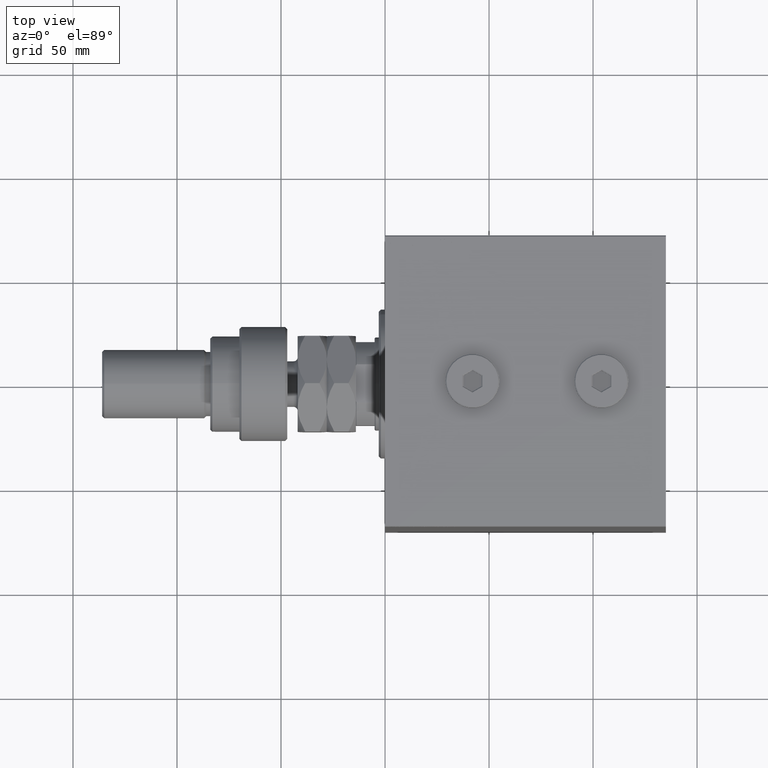
[diagram: clean part render]
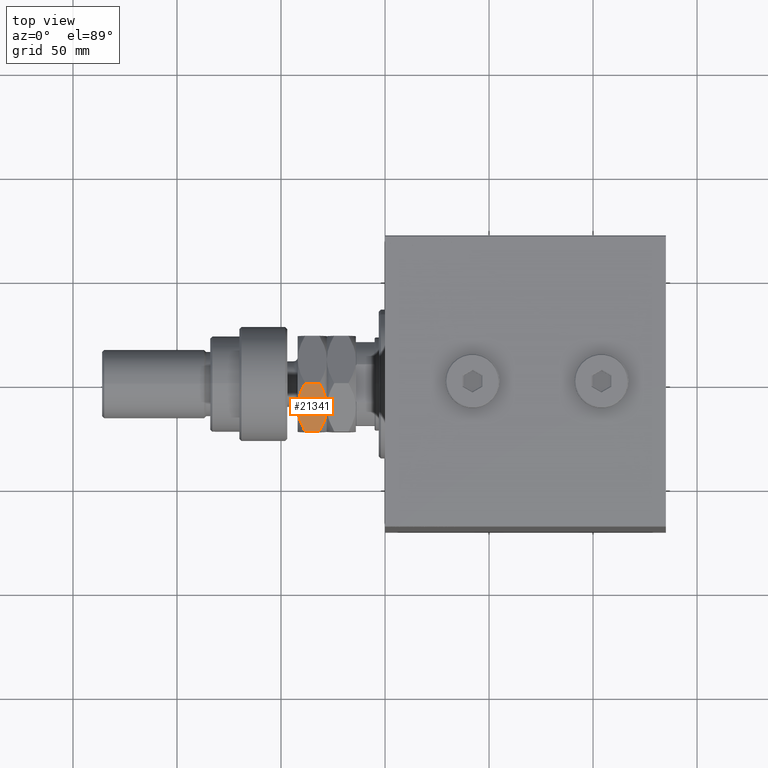
[diagram: same view with one face highlighted and labeled with its STEP entity id]
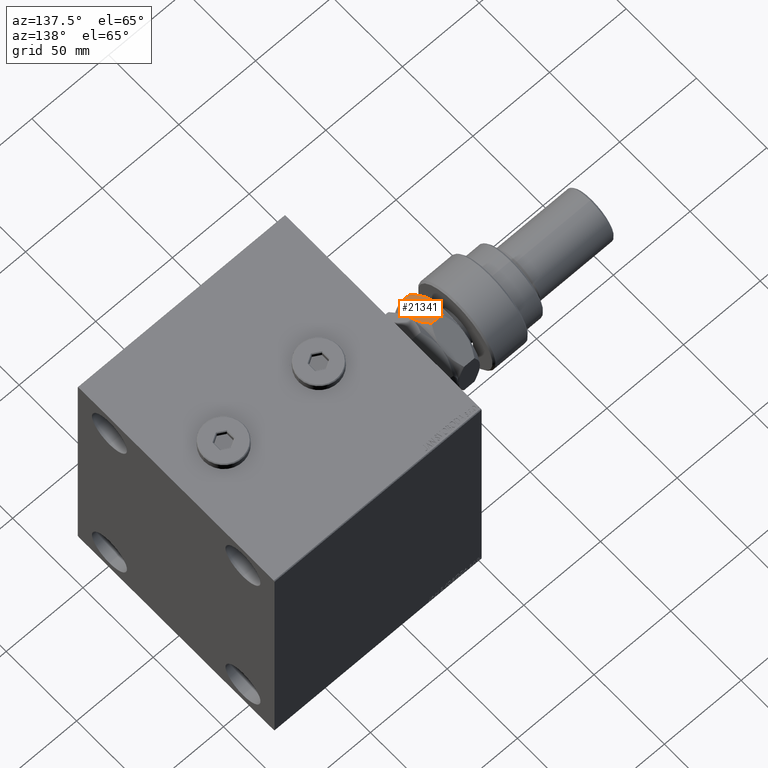
[diagram: same view with one face highlighted and labeled with its STEP entity id]
A machine part, top view. The second image highlights one B-rep face of the part: STEP entity #21341.
A second angle (auxiliary view) of the same face is appended — the face is thin or edge-on in the first view.
In plain terms, the highlighted planar face has unit normal (0, 0.5, -0.866).
Its self-contained STEP definition (entity closure, byte-faithful):
#455 = CARTESIAN_POINT ( 'NONE',  ( 22.99999999999999645, 0.000000000000000000, 14.00000000000000000 ) ) ;
#700 = CARTESIAN_POINT ( 'NONE',  ( 22.99999999999999289, 12.24963129209448276, 17.04339993308932222 ) ) ;
#923 = EDGE_CURVE ( 'NONE', #14373, #15539, #47349, .T. ) ;
#1366 = AXIS2_PLACEMENT_3D ( 'NONE', #5644, #17313, #13167 ) ;
#1873 = CARTESIAN_POINT ( 'NONE',  ( 23.00000000000000000, 5.732845801352522308, 27.32003707801577619 ) ) ;
#2317 = CARTESIAN_POINT ( 'NONE',  ( 23.00000000000000355, -9.037287856520078932, 15.69203433471579778 ) ) ;
#2483 = ORIENTED_EDGE ( 'NONE', *, *, #28625, .F. ) ;
#2920 = LINE ( 'NONE', #40074, #26643 ) ;
#3841 = CARTESIAN_POINT ( 'NONE',  ( 23.00000000000000000, -13.27905619136138959, 24.44188761727722792 ) ) ;
#4094 = CARTESIAN_POINT ( 'NONE',  ( 23.00000000000000355, 9.038140464506014382, 15.70670540628181477 ) ) ;
#4786 = CARTESIAN_POINT ( 'NONE',  ( 23.00000000000000000, -13.27905619136138959, 24.44188761727722792 ) ) ;
#4803 = CARTESIAN_POINT ( 'NONE',  ( 23.00000000000000000, 1.168850493887465758, 27.97756288437166461 ) ) ;
#5040 = CARTESIAN_POINT ( 'NONE',  ( 23.00000000000000000, 13.27905619136138959, 24.44188761727722436 ) ) ;
#5644 = CARTESIAN_POINT ( 'NONE',  ( 23.00000000000000000, -13.27905619136138959, 28.00000000000000000 ) ) ;
#6170 = CARTESIAN_POINT ( 'NONE',  ( 22.99999999999999645, 0.000000000000000000, 14.00000000000000000 ) ) ;
#6664 = VERTEX_POINT ( 'NONE', #19668 ) ;
#6794 = DIRECTION ( 'NONE',  ( -0.000000000000000000, -0.000000000000000000, -1.000000000000000000 ) ) ;
#7726 = CARTESIAN_POINT ( 'NONE',  ( 23.00000000000000711, -2.332866569036887938, 27.99999999999999645 ) ) ;
#8124 = EDGE_LOOP ( 'NONE', ( #2483, #21041, #37347, #27672, #45578, #23728 ) ) ;
#8206 = CARTESIAN_POINT ( 'NONE',  ( 22.99999999999999645, -7.384104261058114460, 26.84961951312581618 ) ) ;
#8922 = CARTESIAN_POINT ( 'NONE',  ( 23.00000000000000355, 11.19584287463890782, 25.43887941699775368 ) ) ;
#9351 = CARTESIAN_POINT ( 'NONE',  ( 23.00000000000000355, -7.945847288453419921, 15.31073039083534226 ) ) ;
#12562 = CARTESIAN_POINT ( 'NONE',  ( 23.00000000000000000, 2.901718448039539044, 27.82452852895291429 ) ) ;
#12761 = CARTESIAN_POINT ( 'NONE',  ( 23.00000000000001066, -0.5819124658698887620, 14.00000000000000711 ) ) ;
#12842 = VERTEX_POINT ( 'NONE', #46415 ) ;
#13087 = VERTEX_POINT ( 'NONE', #19664 ) ;
#13167 = DIRECTION ( 'NONE',  ( 0.000000000000000000, 0.000000000000000000, 1.000000000000000000 ) ) ;
#14373 = VERTEX_POINT ( 'NONE', #4786 ) ;
#15026 = CARTESIAN_POINT ( 'NONE',  ( 22.99999999999999645, 0.000000000000000000, 28.00000000000000000 ) ) ;
#15539 = VERTEX_POINT ( 'NONE', #36060 ) ;
#16195 = CARTESIAN_POINT ( 'NONE',  ( 23.00000000000000000, -2.327345773459499334, 14.11023447772089945 ) ) ;
#16231 = CARTESIAN_POINT ( 'NONE',  ( 22.99999999999999289, 2.327345773459494005, 27.88976552227909878 ) ) ;
#16703 = CARTESIAN_POINT ( 'NONE',  ( 23.00000000000000711, 12.24912306375522242, 24.95685418108031328 ) ) ;
#17145 = CARTESIAN_POINT ( 'NONE',  ( 23.00000000000000000, -13.27905619136138782, 17.55811238272277564 ) ) ;
#17313 = DIRECTION ( 'NONE',  ( -1.000000000000000000, 0.000000000000000000, 0.000000000000000000 ) ) ;
#18428 = CARTESIAN_POINT ( 'NONE',  ( 23.00000000000000000, -9.038140464506012606, 26.29329459371818345 ) ) ;
#19664 = CARTESIAN_POINT ( 'NONE',  ( 23.00000000000000000, 13.27905619136138959, 17.55811238272277564 ) ) ;
#19668 = CARTESIAN_POINT ( 'NONE',  ( 23.00000000000000000, 13.27905619136138959, 24.44188761727722436 ) ) ;
#20311 = CARTESIAN_POINT ( 'NONE',  ( 23.00000000000000355, -11.19584287463890959, 16.56112058300224632 ) ) ;
#21041 = ORIENTED_EDGE ( 'NONE', *, *, #39801, .F. ) ;
#21341 = ADVANCED_FACE ( 'NONE', ( #38928 ), #31885, .F. ) ;
#22804 = CARTESIAN_POINT ( 'NONE',  ( 23.00000000000000000, -12.24963129209447565, 24.95660006691067778 ) ) ;
#22814 = CARTESIAN_POINT ( 'NONE',  ( 23.00000000000000000, 13.27905619136138959, 17.55811238272277564 ) ) ;
#22908 = VECTOR ( 'NONE', #31720, 1000.000000000000000 ) ;
#23516 = CARTESIAN_POINT ( 'NONE',  ( 23.00000000000000355, 9.037287856520077156, 26.30796566528420399 ) ) ;
#23716 = CARTESIAN_POINT ( 'NONE',  ( 22.99999999999999645, 0.000000000000000000, 14.00000000000000000 ) ) ;
#23728 = ORIENTED_EDGE ( 'NONE', *, *, #30595, .F. ) ;
#26578 = VERTEX_POINT ( 'NONE', #6170 ) ;
#26643 = VECTOR ( 'NONE', #6794, 1000.000000000000000 ) ;
#27392 = CARTESIAN_POINT ( 'NONE',  ( 23.00000000000000355, 4.611258391204997586, 27.56938464817973511 ) ) ;
#27672 = ORIENTED_EDGE ( 'NONE', *, *, #923, .F. ) ;
#28069 = CARTESIAN_POINT ( 'NONE',  ( 23.00000000000000711, -12.24912306375521531, 17.04314581891969382 ) ) ;
#28625 = EDGE_CURVE ( 'NONE', #13087, #26578, #31791, .T. ) ;
#28661 = EDGE_CURVE ( 'NONE', #15539, #6664, #41598, .T. ) ;
#29592 = CARTESIAN_POINT ( 'NONE',  ( 22.99999999999999645, -11.20010744839417427, 25.43691701641144221 ) ) ;
#30569 = CARTESIAN_POINT ( 'NONE',  ( 23.00000000000000355, 2.332866569036886606, 14.00000000000000355 ) ) ;
#30595 = EDGE_CURVE ( 'NONE', #26578, #12842, #35650, .T. ) ;
#31720 = DIRECTION ( 'NONE',  ( -0.000000000000000000, -0.000000000000000000, -1.000000000000000000 ) ) ;
#31791 = B_SPLINE_CURVE_WITH_KNOTS ( 'NONE', 3,
 ( #22814, #700, #37383, #45157, #4094, #41736, #37144, #40767, #30569, #455 ),
 .UNSPECIFIED., .F., .F.,
 ( 4, 2, 2, 2, 4 ),
 ( 0.03391842154671734916, 0.03738166515001972723, 0.03911328695167091973, 0.04084490875332210530, 0.04777139595992687532 ),
 .UNSPECIFIED. ) ;
#31885 = PLANE ( 'NONE',  #1366 ) ;
#35115 = CARTESIAN_POINT ( 'NONE',  ( 23.00000000000000000, -13.27905619136138959, 28.00000000000000000 ) ) ;
#35399 = CARTESIAN_POINT ( 'NONE',  ( 22.99999999999999645, 7.945847288453418145, 26.68926960916466129 ) ) ;
#35650 = B_SPLINE_CURVE_WITH_KNOTS ( 'NONE', 3,
 ( #23716, #12761, #39005, #16195, #46769, #42644, #39247, #9351, #2317, #20311, #28069, #17145 ),
 .UNSPECIFIED., .F., .F.,
 ( 4, 2, 2, 2, 2, 4 ),
 ( 0.04777139595992687532, 0.04949914554651194121, 0.05122689513309700016, 0.05468239430626712499, 0.05813789347943724983, 0.06159339265260737467 ),
 .UNSPECIFIED. ) ;
#36060 = CARTESIAN_POINT ( 'NONE',  ( 22.99999999999999645, 0.000000000000000000, 28.00000000000000000 ) ) ;
#37144 = CARTESIAN_POINT ( 'NONE',  ( 23.00000000000000711, 7.384104261058126895, 15.15038048687418559 ) ) ;
#37347 = ORIENTED_EDGE ( 'NONE', *, *, #28661, .F. ) ;
#37383 = CARTESIAN_POINT ( 'NONE',  ( 23.00000000000000000, 11.20010744839417782, 16.56308298358856135 ) ) ;
#38928 = FACE_OUTER_BOUND ( 'NONE', #8124, .T. ) ;
#39005 = CARTESIAN_POINT ( 'NONE',  ( 23.00000000000000000, -1.168850493887471087, 14.02243711562833184 ) ) ;
#39045 = CARTESIAN_POINT ( 'NONE',  ( 22.99999999999999645, 0.000000000000000000, 28.00000000000000000 ) ) ;
#39247 = CARTESIAN_POINT ( 'NONE',  ( 23.00000000000000711, -5.732845801352522308, 14.67996292198422736 ) ) ;
#39801 = EDGE_CURVE ( 'NONE', #6664, #13087, #2920, .T. ) ;
#40074 = CARTESIAN_POINT ( 'NONE',  ( 23.00000000000000000, 13.27905619136138959, 28.00000000000000000 ) ) ;
#40513 = CARTESIAN_POINT ( 'NONE',  ( 23.00000000000000711, -4.604003285773378806, 27.64082713328069119 ) ) ;
#40767 = CARTESIAN_POINT ( 'NONE',  ( 23.00000000000000355, 4.604003285773385024, 14.35917286671931059 ) ) ;
#40997 = CARTESIAN_POINT ( 'NONE',  ( 22.99999999999999289, -9.585014738077486385, 26.08755915768734468 ) ) ;
#41598 = B_SPLINE_CURVE_WITH_KNOTS ( 'NONE', 3,
 ( #39045, #46571, #4803, #16231, #12562, #27392, #1873, #35399, #23516, #8922, #16703, #5040 ),
 .UNSPECIFIED., .F., .F.,
 ( 4, 2, 2, 2, 2, 4 ),
 ( 0.04777139595992686838, 0.04949914554651193427, 0.05122689513309699322, 0.05468239430626712499, 0.05813789347943724983, 0.06159339265260738161 ),
 .UNSPECIFIED. ) ;
#41736 = CARTESIAN_POINT ( 'NONE',  ( 23.00000000000001066, 7.937214062685167271, 15.32555602763360092 ) ) ;
#42644 = CARTESIAN_POINT ( 'NONE',  ( 23.00000000000000355, -4.611258391204995810, 14.43061535182026667 ) ) ;
#44426 = EDGE_CURVE ( 'NONE', #14373, #12842, #46290, .T. ) ;
#44909 = CARTESIAN_POINT ( 'NONE',  ( 23.00000000000000000, -7.937214062685161942, 26.67444397236640086 ) ) ;
#45157 = CARTESIAN_POINT ( 'NONE',  ( 22.99999999999999289, 9.585014738077491714, 15.91244084231266420 ) ) ;
#45578 = ORIENTED_EDGE ( 'NONE', *, *, #44426, .T. ) ;
#46290 = LINE ( 'NONE', #35115, #22908 ) ;
#46415 = CARTESIAN_POINT ( 'NONE',  ( 23.00000000000000000, -13.27905619136138782, 17.55811238272277564 ) ) ;
#46571 = CARTESIAN_POINT ( 'NONE',  ( 23.00000000000000711, 0.5819124658698872077, 28.00000000000000000 ) ) ;
#46769 = CARTESIAN_POINT ( 'NONE',  ( 23.00000000000000355, -2.901718448039537712, 14.17547147104708571 ) ) ;
#47349 = B_SPLINE_CURVE_WITH_KNOTS ( 'NONE', 3,
 ( #3841, #22804, #29592, #40997, #18428, #44909, #8206, #40513, #7726, #15026 ),
 .UNSPECIFIED., .F., .F.,
 ( 4, 2, 2, 2, 4 ),
 ( 0.03391842154671734916, 0.03738166515001972723, 0.03911328695167091973, 0.04084490875332210530, 0.04777139595992686838 ),
 .UNSPECIFIED. ) ;